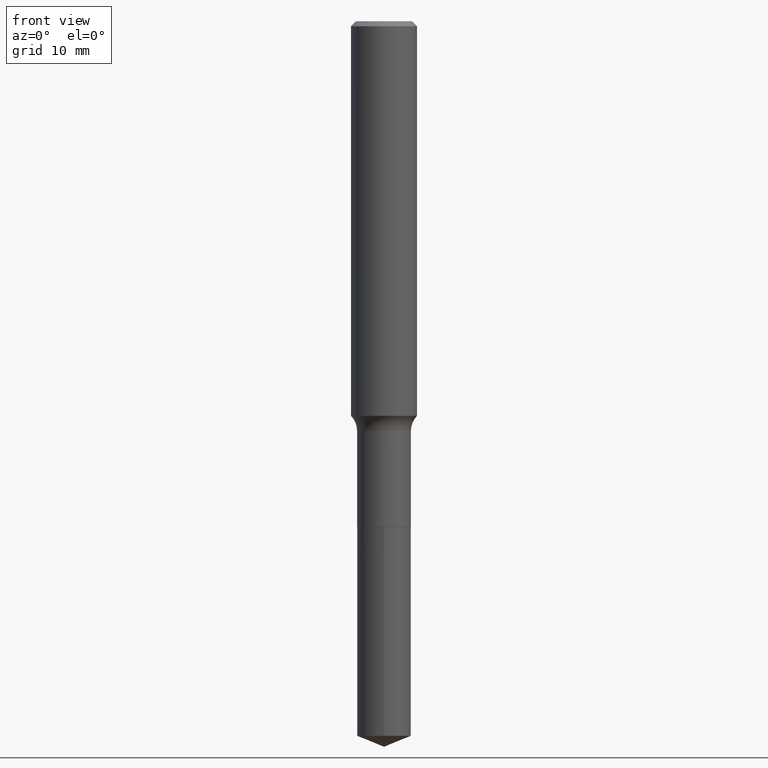
[diagram: clean part render]
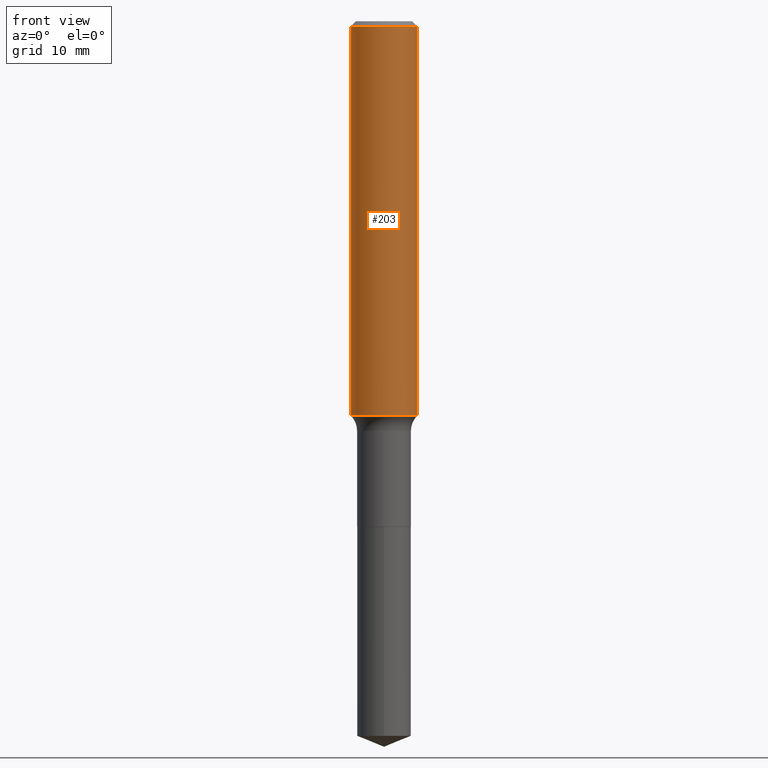
[diagram: same view with one face highlighted and labeled with its STEP entity id]
A machine part, front view. The second image highlights one B-rep face of the part: STEP entity #203.
In plain terms, the highlighted cylindrical surface (edge-blend (fillet) strip) has radius 2.9997 mm, axis along (-0, 0, 1).
Its self-contained STEP definition (entity closure, byte-faithful):
#8 = DIRECTION ( 'NONE',  ( -2.445468806185136597E-29, 3.491481338843145583E-15, 1.000000000000000000 ) ) ;
#18 = DIRECTION ( 'NONE',  ( -2.445468806185136877E-29, 3.491481338843145188E-15, 1.000000000000000000 ) ) ;
#29 = CARTESIAN_POINT ( 'NONE',  ( 0.1181000000000001632, -5.758737046621654966E-15, -1.413167843543948310 ) ) ;
#53 = DIRECTION ( 'NONE',  ( 1.000000000000000000, -6.982962677686266711E-15, 0.000000000000000000 ) ) ;
#55 = ORIENTED_EDGE ( 'NONE', *, *, #442, .T. ) ;
#65 = AXIS2_PLACEMENT_3D ( 'NONE', #234, #342, #477 ) ;
#92 = FACE_OUTER_BOUND ( 'NONE', #472, .T. ) ;
#111 = CIRCLE ( 'NONE', #65, 0.1181000000000001632 ) ;
#140 = ORIENTED_EDGE ( 'NONE', *, *, #212, .T. ) ;
#172 = VECTOR ( 'NONE', #293, 39.37007874015748143 ) ;
#174 = DIRECTION ( 'NONE',  ( -2.445468806185136597E-29, 3.491481338843145583E-15, 1.000000000000000000 ) ) ;
#176 = ORIENTED_EDGE ( 'NONE', *, *, #207, .F. ) ;
#177 = EDGE_CURVE ( 'NONE', #335, #240, #387, .T. ) ;
#180 = ORIENTED_EDGE ( 'NONE', *, *, #177, .F. ) ;
#203 = ADVANCED_FACE ( 'NONE', ( #92 ), #396, .T. ) ;
#207 = EDGE_CURVE ( 'NONE', #240, #257, #214, .T. ) ;
#208 = DIRECTION ( 'NONE',  ( 1.000000000000000000, -6.982962677686266711E-15, 4.876176775795936353E-29 ) ) ;
#212 = EDGE_CURVE ( 'NONE', #305, #257, #217, .T. ) ;
#214 = CIRCLE ( 'NONE', #322, 0.1180999999999999966 ) ;
#217 = LINE ( 'NONE', #363, #172 ) ;
#229 = CARTESIAN_POINT ( 'NONE',  ( -0.1181000000000000799, 8.391509709326788873E-16, -5.809262341591047988E-30 ) ) ;
#234 = CARTESIAN_POINT ( 'NONE',  ( 3.455857879290642834E-29, -4.934049154386905126E-15, -1.413167843543948310 ) ) ;
#240 = VERTEX_POINT ( 'NONE', #398 ) ;
#242 = AXIS2_PLACEMENT_3D ( 'NONE', #329, #8, #208 ) ;
#257 = VERTEX_POINT ( 'NONE', #434 ) ;
#293 = DIRECTION ( 'NONE',  ( -2.445468806185136877E-29, 3.491481338843145188E-15, 1.000000000000000000 ) ) ;
#305 = VERTEX_POINT ( 'NONE', #29 ) ;
#307 = CARTESIAN_POINT ( 'NONE',  ( -0.1181000000000001632, -4.094898183454225351E-15, -1.413167843543948310 ) ) ;
#322 = AXIS2_PLACEMENT_3D ( 'NONE', #456, #174, #53 ) ;
#329 = CARTESIAN_POINT ( 'NONE',  ( 0.000000000000000000, 0.000000000000000000, 0.000000000000000000 ) ) ;
#335 = VERTEX_POINT ( 'NONE', #307 ) ;
#342 = DIRECTION ( 'NONE',  ( -2.445468806185136597E-29, 3.491481338843145583E-15, 1.000000000000000000 ) ) ;
#363 = CARTESIAN_POINT ( 'NONE',  ( 0.1181000000000000799, -8.246878922347486570E-16, 5.758764772215004644E-30 ) ) ;
#387 = LINE ( 'NONE', #229, #457 ) ;
#396 = CYLINDRICAL_SURFACE ( 'NONE', #242, 0.1181000000000000799 ) ;
#398 = CARTESIAN_POINT ( 'NONE',  ( -0.1180999999999999966, -1.658799402219576084E-15, -0.01771500000000011260 ) ) ;
#434 = CARTESIAN_POINT ( 'NONE',  ( 0.1180999999999999966, -8.865394841523547570E-16, -0.01771500000000011260 ) ) ;
#442 = EDGE_CURVE ( 'NONE', #335, #305, #111, .T. ) ;
#456 = CARTESIAN_POINT ( 'NONE',  ( 4.332147990156996744E-31, -6.185159191760671627E-17, -0.01771500000000011260 ) ) ;
#457 = VECTOR ( 'NONE', #18, 39.37007874015748143 ) ;
#472 = EDGE_LOOP ( 'NONE', ( #180, #55, #140, #176 ) ) ;
#477 = DIRECTION ( 'NONE',  ( 1.000000000000000000, -6.982962677686270655E-15, 0.000000000000000000 ) ) ;